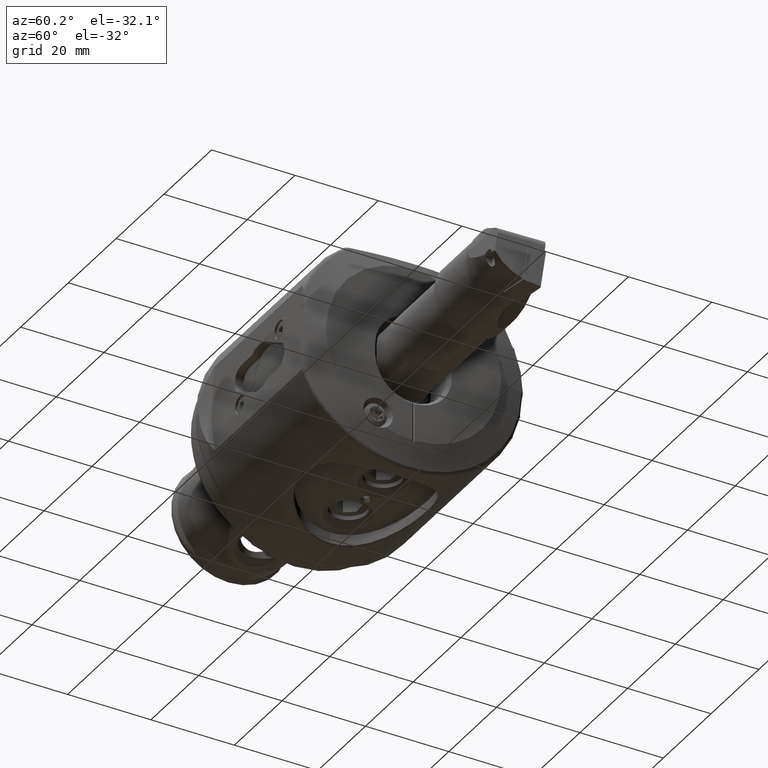
[diagram: clean part render]
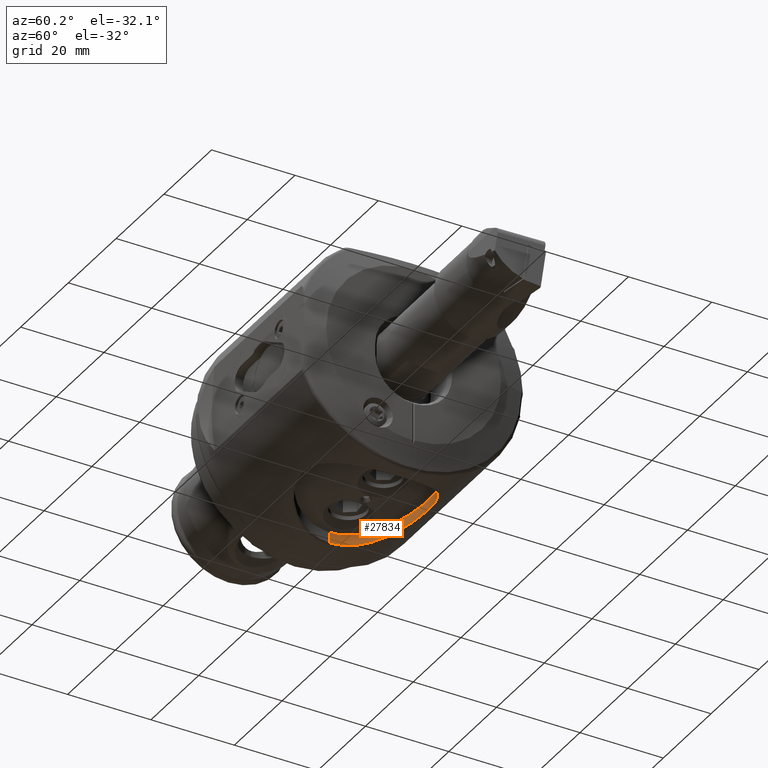
[diagram: same view with one face highlighted and labeled with its STEP entity id]
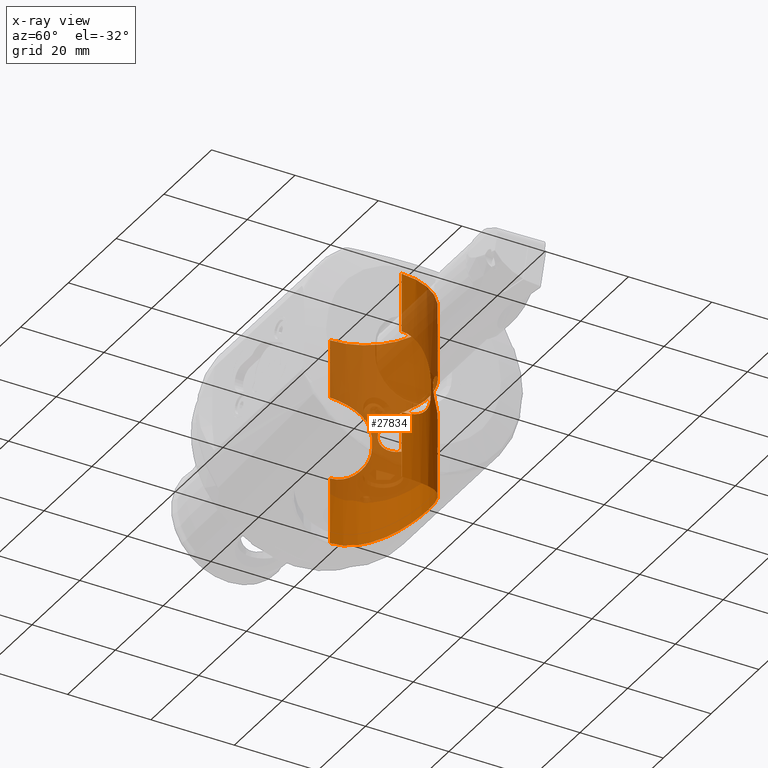
[diagram: x-ray of the same camera — body ghosted, the highlighted face saturated]
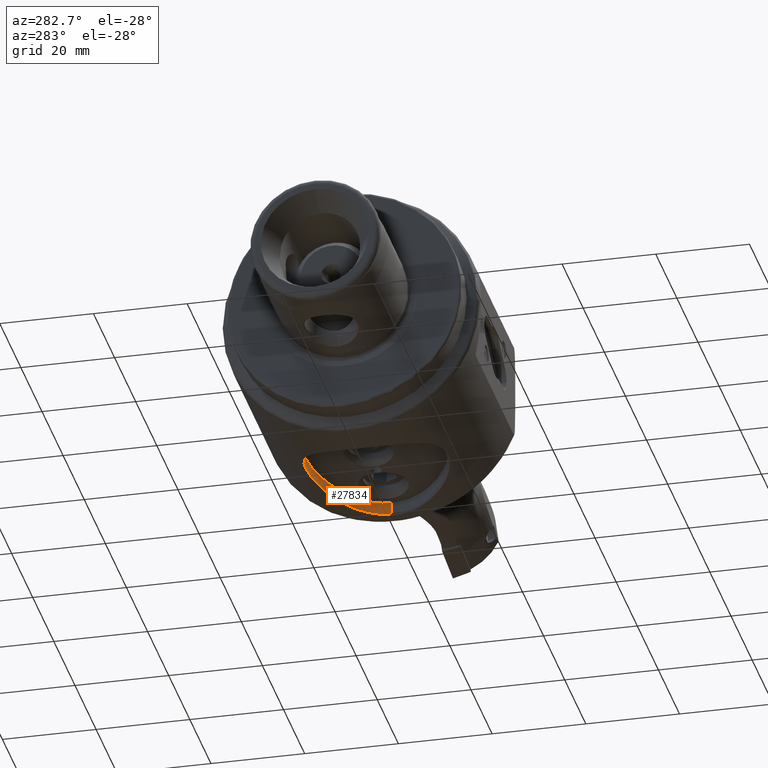
[diagram: same view with one face highlighted and labeled with its STEP entity id]
A machine part, auxiliary view. The second image highlights one B-rep face of the part: STEP entity #27834.
The next image is the same camera in x-ray: the body ghosted, the highlighted face saturated — about 62% of this face is hidden behind the body in this view.
A second angle (auxiliary view) of the same face is appended — the face is thin or edge-on in the first view.
In plain terms, the highlighted cylindrical surface (partial cylindrical patch) has radius 15 mm, axis along (0, 0, 1).
Its self-contained STEP definition (entity closure, byte-faithful):
#95 = CARTESIAN_POINT ( 'NONE',  ( 22.75157557544884700, 13.13467273460381800, -23.67365640926875900 ) ) ;
#143 = CARTESIAN_POINT ( 'NONE',  ( 22.53274095894338600, 13.01179327144117800, -23.74415716907358100 ) ) ;
#179 = CARTESIAN_POINT ( 'NONE',  ( 22.20005937471370700, 12.81318097403018500, -23.85561619081520800 ) ) ;
#243 = CARTESIAN_POINT ( 'NONE',  ( 22.03261400971080500, 12.71030177477935100, -23.91277267219462700 ) ) ;
#286 = CARTESIAN_POINT ( 'NONE',  ( 26.79120852772499700, 14.66733810437715700, -4.999999999999992900 ) ) ;
#298 = CARTESIAN_POINT ( 'NONE',  ( 21.83562904784315300, 12.58375944407518100, -23.98195243219402100 ) ) ;
#334 = CARTESIAN_POINT ( 'NONE',  ( 21.73676857496848300, 12.51882664595182400, -24.01716661179121800 ) ) ;
#400 = CARTESIAN_POINT ( 'NONE',  ( 21.69078835310330100, 12.48828978938217200, -24.03366097901077600 ) ) ;
#447 = CARTESIAN_POINT ( 'NONE',  ( 21.67132137409110000, 12.47530136149333100, -24.04066491311673600 ) ) ;
#538 = CARTESIAN_POINT ( 'NONE',  ( 21.66601107688186900, 12.47175341173732700, -24.04257716725264500 ) ) ;
#676 = CARTESIAN_POINT ( 'NONE',  ( 21.66247063056649900, 12.46938685532176000, -24.04385246785187400 ) ) ;
#725 = CARTESIAN_POINT ( 'NONE',  ( 21.65966962962145500, 12.46751338094114400, -24.04486182088266600 ) ) ;
#760 = CARTESIAN_POINT ( 'NONE',  ( 45.00000000000000700, -1.264993041911778700E-015, -11.30000000000002400 ) ) ;
#874 = CARTESIAN_POINT ( 'NONE',  ( 21.65647486111267400, 12.46537595553541100, -24.04601327739413800 ) ) ;
#917 = CARTESIAN_POINT ( 'NONE',  ( 26.15942712606574000, 14.50000000000000700, -4.999999999999999100 ) ) ;
#1018 = CARTESIAN_POINT ( 'NONE',  ( 21.65389056553872700, 12.46364582288146000, -24.04694552055352500 ) ) ;
#1149 = CARTESIAN_POINT ( 'NONE',  ( 21.48406249076424500, 12.34987120328142900, -24.10826139267583600 ) ) ;
#1205 = CARTESIAN_POINT ( 'NONE',  ( 21.19892904272943600, 12.15641744058195400, -24.21400922768919300 ) ) ;
#1245 = ORIENTED_EDGE ( 'NONE', *, *, #7022, .T. ) ;
#1271 = CARTESIAN_POINT ( 'NONE',  ( 33.84057287393425600, 14.50000000000000500, 4.999999999999993800 ) ) ;
#1291 = CARTESIAN_POINT ( 'NONE',  ( 20.62123909262756200, 11.70889309834586600, -24.44069390621015700 ) ) ;
#1314 = CARTESIAN_POINT ( 'NONE',  ( 34.31415174142357900, 14.37456454123118400, 4.999999999999994700 ) ) ;
#1350 = CARTESIAN_POINT ( 'NONE',  ( 20.40393738703580300, 11.53320618936145800, -24.52759928671730100 ) ) ;
#1384 = CARTESIAN_POINT ( 'NONE',  ( 34.78214550815981500, 14.22584008890221200, 4.995481341966534000 ) ) ;
#1424 = CARTESIAN_POINT ( 'NONE',  ( 35.70666439557698600, 13.88082934743038000, 4.964536755608261100 ) ) ;
#1429 = CARTESIAN_POINT ( 'NONE',  ( 17.64079290569173300, 8.500000000000007100, 31.65196704728146000 ) ) ;
#1445 = CARTESIAN_POINT ( 'NONE',  ( 20.04708006193269700, 11.22337740504104500, -24.67497308897824500 ) ) ;
#1467 = CARTESIAN_POINT ( 'NONE',  ( 36.16419873297788700, 13.68370012713376100, 4.937860107210929600 ) ) ;
#1499 = CARTESIAN_POINT ( 'NONE',  ( 19.92299936373476800, 11.11237251125822400, -24.72693364498193700 ) ) ;
#1566 = CARTESIAN_POINT ( 'NONE',  ( 37.04571651781001400, 13.25137253040702000, 4.846621231642140900 ) ) ;
#1587 = CARTESIAN_POINT ( 'NONE',  ( 19.73018309186482000, 10.93336873230044600, -24.80912841186253500 ) ) ;
#1657 = CARTESIAN_POINT ( 'NONE',  ( 37.47228568034080400, 13.01533167904467800, 4.782182072620042100 ) ) ;
#1663 = CARTESIAN_POINT ( 'NONE',  ( 38.08947102746146400, 12.63403880383878400, 4.640750495787804300 ) ) ;
#1669 = ORIENTED_EDGE ( 'NONE', *, *, #7602, .F. ) ;
#1711 = CARTESIAN_POINT ( 'NONE',  ( 38.29141305790228200, 12.50240507956488600, 4.586087235399565600 ) ) ;
#1731 = CARTESIAN_POINT ( 'NONE',  ( 19.63210361500684400, 10.84074201234994900, -24.85128927852158400 ) ) ;
#1774 = CARTESIAN_POINT ( 'NONE',  ( 26.15942712606574000, 14.50000000000000700, -4.999999999999999100 ) ) ;
#1810 = CARTESIAN_POINT ( 'NONE',  ( 38.68735835095895200, 12.23059557635302500, 4.457845349355955600 ) ) ;
#1883 = CARTESIAN_POINT ( 'NONE',  ( 25.20066200526853700, 14.24605466790290200, -4.999999999999994700 ) ) ;
#1902 = CARTESIAN_POINT ( 'NONE',  ( 19.51499795315606200, 10.72700534274550100, -24.90233805192331900 ) ) ;
#1920 = CARTESIAN_POINT ( 'NONE',  ( 38.88075131634208500, 12.09075935697175200, 4.384326948336799000 ) ) ;
#1939 = CARTESIAN_POINT ( 'NONE',  ( 24.27952893478732900, 13.90099785945499800, -4.983539480594757300 ) ) ;
#1946 = CARTESIAN_POINT ( 'NONE',  ( 22.95874317955715300, 13.25371966893422700, -4.847205655442584400 ) ) ;
#1955 = CARTESIAN_POINT ( 'NONE',  ( 19.46426369955594600, 10.67702350020062400, -24.92461490387395200 ) ) ;
#2031 = CARTESIAN_POINT ( 'NONE',  ( 39.43719608515409200, 11.66859687940239000, 4.134030652087153300 ) ) ;
#2036 = CARTESIAN_POINT ( 'NONE',  ( 22.52545394689134300, 13.01409632245477400, -4.781861774022488900 ) ) ;
#2086 = CARTESIAN_POINT ( 'NONE',  ( 21.69982301603708000, 12.50370360433520700, -4.592266593465113900 ) ) ;
#2126 = CARTESIAN_POINT ( 'NONE',  ( 39.78025508092153500, 11.38092263896443200, 3.927111279155718100 ) ) ;
#2177 = CARTESIAN_POINT ( 'NONE',  ( 21.30739908724399400, 12.23334856545922700, -4.468652474341881000 ) ) ;
#2192 = CARTESIAN_POINT ( 'NONE',  ( 19.43880793401199400, 10.65182447749655200, -24.93581979755044400 ) ) ;
#2224 = CARTESIAN_POINT ( 'NONE',  ( 20.56651339216970000, 11.67156622619073600, -4.136003632653461700 ) ) ;
#2231 = DIRECTION ( 'NONE',  ( -0.0000000000000000000, -0.0000000000000000000, 1.000000000000000000 ) ) ;
#2245 = CARTESIAN_POINT ( 'NONE',  ( 19.42900421947020800, 10.64209267334858400, -24.94014147116021400 ) ) ;
#2264 = CARTESIAN_POINT ( 'NONE',  ( 40.24945027573112800, 10.95415293100343000, 3.530535399771189500 ) ) ;
#2320 = CARTESIAN_POINT ( 'NONE',  ( 20.21627879125151100, 11.37777849039900200, -3.924211474300705000 ) ) ;
#2324 = CARTESIAN_POINT ( 'NONE',  ( 40.39681945488153800, 10.81399494466730900, 3.384730831310358600 ) ) ;
#2342 = CARTESIAN_POINT ( 'NONE',  ( 19.41568196929600600, 10.62884283847648300, -24.94601919231905600 ) ) ;
#2358 = CARTESIAN_POINT ( 'NONE',  ( 40.66828620205345100, 10.54627948386393400, 3.067756533469661900 ) ) ;
#2379 = CARTESIAN_POINT ( 'NONE',  ( 19.75203063378784700, 10.95549564766252000, -3.531772162636301400 ) ) ;
#2397 = CARTESIAN_POINT ( 'NONE',  ( 19.40903210934275000, 10.62221667695599500, -24.94895468746320300 ) ) ;
#2419 = CARTESIAN_POINT ( 'NONE',  ( 40.79321992689213500, 10.41796112357476800, 2.895948158624200200 ) ) ;
#2435 = CARTESIAN_POINT ( 'NONE',  ( 19.60640768003307200, 10.81710695235074700, -3.388139458516095500 ) ) ;
#2439 = CARTESIAN_POINT ( 'NONE',  ( 19.33404065693537900, 10.54864329780673600, -3.070825687467348500 ) ) ;
#2475 = CARTESIAN_POINT ( 'NONE',  ( 19.20736506027044800, 10.41854720349732900, -2.896628066587807000 ) ) ;
#2479 = CARTESIAN_POINT ( 'NONE',  ( 41.13480893173481000, 10.05614595677951900, 2.334606979105421100 ) ) ;
#2492 = CARTESIAN_POINT ( 'NONE',  ( 18.55265124312265700, 9.767286520010523900, -25.32719941990389500 ) ) ;
#2510 = CARTESIAN_POINT ( 'NONE',  ( 41.31053133227823100, 9.854229438513010900, 1.911121142285483000 ) ) ;
#2544 = CARTESIAN_POINT ( 'NONE',  ( 17.88839018885194300, 8.901987805243216200, -25.64737273084950800 ) ) ;
#2566 = CARTESIAN_POINT ( 'NONE',  ( 41.48953151366534800, 9.643606939720076100, 1.214223404766314100 ) ) ;
#2581 = CARTESIAN_POINT ( 'NONE',  ( 18.98133241162530600, 10.17919738244004600, -2.525742628675919500 ) ) ;
#2588 = CARTESIAN_POINT ( 'NONE',  ( 18.88079543213728000, 10.06880340606726200, -2.327889085177189600 ) ) ;
#2618 = CARTESIAN_POINT ( 'NONE',  ( 41.53394097068896700, 9.590119569518426700, 0.9764858150665428600 ) ) ;
#2623 = CARTESIAN_POINT ( 'NONE',  ( 18.70488083193847800, 9.871058465600327700, -1.904592113308727400 ) ) ;
#2627 = CARTESIAN_POINT ( 'NONE',  ( 41.59352337021709900, 9.518004178252267500, 0.4900694040034138100 ) ) ;
#2640 = CARTESIAN_POINT ( 'NONE',  ( 17.10580072551195100, 7.679436492695356400, -26.04492375958855300 ) ) ;
#2659 = CARTESIAN_POINT ( 'NONE',  ( 41.60857696978006700, 9.499523205493572300, 0.2385109945167295200 ) ) ;
#2678 = CARTESIAN_POINT ( 'NONE',  ( 18.63066917109218700, 9.785024119928557700, -1.681291795943409300 ) ) ;
#2694 = CARTESIAN_POINT ( 'NONE',  ( 16.88035921579060500, 7.283966841746510200, -26.16365594622166700 ) ) ;
#2733 = CARTESIAN_POINT ( 'NONE',  ( 16.58642396541695900, 6.717236394459233000, -26.32107699175151100 ) ) ;
#2744 = CARTESIAN_POINT ( 'NONE',  ( 18.51208425671006500, 9.645526030228126000, -1.221401706879983000 ) ) ;
#2771 = CARTESIAN_POINT ( 'NONE',  ( 41.60778086193898400, 9.500495979485613400, -0.2580992362699954800 ) ) ;
#2775 = CARTESIAN_POINT ( 'NONE',  ( 18.46690786107222200, 9.591143784820172200, -0.9822619822595837200 ) ) ;
#2790 = CARTESIAN_POINT ( 'NONE',  ( 16.49581635880654000, 6.532711958355768000, -26.37010446785815200 ) ) ;
#2822 = CARTESIAN_POINT ( 'NONE',  ( 18.40643412916083900, 9.517955861665145200, -0.4908606184911195000 ) ) ;
#2833 = VERTEX_POINT ( 'NONE', #37046 ) ;
#2835 = CARTESIAN_POINT ( 'NONE',  ( 16.36986838943797200, 6.263332788159841500, -26.43847637341314500 ) ) ;
#2861 = CARTESIAN_POINT ( 'NONE',  ( 41.59240383859057700, 9.519371664252043200, -0.5036592869835555500 ) ) ;
#2875 = CARTESIAN_POINT ( 'NONE',  ( 18.39170409464222200, 9.499866641362832100, -0.2444294125085618700 ) ) ;
#2880 = CARTESIAN_POINT ( 'NONE',  ( 18.39192357751103300, 9.500134830605308200, 0.2498552175346022400 ) ) ;
#2916 = CARTESIAN_POINT ( 'NONE',  ( 41.53178319910659200, 9.592718065696345800, -0.9894014925586518400 ) ) ;
#2955 = CARTESIAN_POINT ( 'NONE',  ( 41.48567713960625300, 9.648197494095732900, -1.231945338293141300 ) ) ;
#2984 = CARTESIAN_POINT ( 'NONE',  ( 18.63129727979879400, 9.785752174759608100, 1.683194300325362900 ) ) ;
#3036 = CARTESIAN_POINT ( 'NONE',  ( 16.30938566620878300, 6.130492915663910300, -26.47136999903940000 ) ) ;
#3040 = CARTESIAN_POINT ( 'NONE',  ( 18.70566180108068400, 9.871950354955384200, 1.906706644849234000 ) ) ;
#3081 = CARTESIAN_POINT ( 'NONE',  ( 41.36625197158512900, 9.788606149947279200, -1.691284973777805700 ) ) ;
#3085 = CARTESIAN_POINT ( 'NONE',  ( 18.88142409084295500, 10.06949596129738100, 2.329164594774186400 ) ) ;
#3094 = CARTESIAN_POINT ( 'NONE',  ( 16.24294846837176800, 5.978909625272207200, -26.50748432308870800 ) ) ;
#3127 = CARTESIAN_POINT ( 'NONE',  ( 18.98176662808428700, 10.17965880898577100, 2.526468746665353000 ) ) ;
#3141 = CARTESIAN_POINT ( 'NONE',  ( 16.21073263646107100, 5.903985534791800700, -26.52497609198467600 ) ) ;
#3161 = CARTESIAN_POINT ( 'NONE',  ( 41.29298177439074600, 9.873481725764953900, -1.910081582743011800 ) ) ;
#3175 = CARTESIAN_POINT ( 'NONE',  ( 16.19713766709662700, 5.872063055247029000, -26.53235140869824700 ) ) ;
#3177 = CARTESIAN_POINT ( 'NONE',  ( 19.20707115602652600, 10.41823435493193800, 2.896132171257585600 ) ) ;
#3218 = CARTESIAN_POINT ( 'NONE',  ( 41.11923754589927400, 10.06874546026464600, -2.327459172282026100 ) ) ;
#3221 = CARTESIAN_POINT ( 'NONE',  ( 19.33299125835747400, 10.54759067274875600, 3.069510118688221700 ) ) ;
#3235 = CARTESIAN_POINT ( 'NONE',  ( 16.19037523088037700, 5.856133281661865200, -26.53601887444328600 ) ) ;
#3262 = CARTESIAN_POINT ( 'NONE',  ( 19.60601099863584600, 10.81673412512554600, 3.387769820081838500 ) ) ;
#3276 = CARTESIAN_POINT ( 'NONE',  ( 16.18826845072596000, 5.851165495157524700, -26.53716111893315200 ) ) ;
#3295 = CARTESIAN_POINT ( 'NONE',  ( 41.01769852267279500, 10.18026042448406400, -2.527641326793565100 ) ) ;
#3301 = VERTEX_POINT ( 'NONE', #27599 ) ;
#3312 = CARTESIAN_POINT ( 'NONE',  ( 16.18193658292446500, 5.836196487663225500, -26.54059452440953800 ) ) ;
#3325 = CARTESIAN_POINT ( 'NONE',  ( 19.75178922642986700, 10.95526810597990800, 3.531540359484654200 ) ) ;
#3357 = CARTESIAN_POINT ( 'NONE',  ( 20.06114679934219700, 11.23667746218576500, 3.793102625206170100 ) ) ;
#3368 = ORIENTED_EDGE ( 'NONE', *, *, #9920, .T. ) ;
#3375 = CARTESIAN_POINT ( 'NONE',  ( 16.17877724869281400, 5.828710634138783300, -26.54230788387186000 ) ) ;
#3408 = CARTESIAN_POINT ( 'NONE',  ( 20.22473654642579200, 11.37956811404555200, 3.910865448574985900 ) ) ;
#3412 = CARTESIAN_POINT ( 'NONE',  ( 20.56947923529106600, 11.66686008124634500, 4.123746101847613600 ) ) ;
#3423 = CARTESIAN_POINT ( 'NONE',  ( 15.77207425882920900, 4.862863008007878700, -26.76289997192448000 ) ) ;
#3462 = CARTESIAN_POINT ( 'NONE',  ( 15.47706622566907700, 3.882923892892486100, -26.92700581196551800 ) ) ;
#3465 = CARTESIAN_POINT ( 'NONE',  ( 20.75059245037976700, 11.81112796991803800, 4.218618333483593800 ) ) ;
#3532 = CARTESIAN_POINT ( 'NONE',  ( 15.18758334756398300, 2.416710317256782300, -27.09100022428942000 ) ) ;
#3548 = CARTESIAN_POINT ( 'NONE',  ( 40.67679506054608400, 10.54113748237775100, -3.086080082457257800 ) ) ;
#3562 = CARTESIAN_POINT ( 'NONE',  ( 40.40598197072394300, 10.81180438587276500, -3.398332761160487400 ) ) ;
#3566 = CARTESIAN_POINT ( 'NONE',  ( 21.30752559084732000, 12.23347965254506400, 4.468778274385182500 ) ) ;
#3604 = CARTESIAN_POINT ( 'NONE',  ( 39.77898683343219900, 11.38204688819056700, -3.928081062834868100 ) ) ;
#3651 = CARTESIAN_POINT ( 'NONE',  ( 39.43576879621909400, 11.66972382040825500, -4.134759269452021400 ) ) ;
#3656 = CARTESIAN_POINT ( 'NONE',  ( 21.70082708864639500, 12.50440953311803400, 4.592601784403775000 ) ) ;
#3659 = CARTESIAN_POINT ( 'NONE',  ( 38.69488931390900900, 12.23172459791247100, -4.467843346556424700 ) ) ;
#3668 = CARTESIAN_POINT ( 'NONE',  ( 15.11651096996698700, 1.928525251911728900, -27.13197097044110300 ) ) ;
#3700 = CARTESIAN_POINT ( 'NONE',  ( 38.29509731030847100, 12.50703559395937400, -4.593668425506356500 ) ) ;
#3703 = CARTESIAN_POINT ( 'NONE',  ( 22.32140360342576100, 12.88791253751501400, 4.734951650091411500 ) ) ;
#3710 = CARTESIAN_POINT ( 'NONE',  ( 22.53399977460964700, 13.01226300739830000, 4.775126638887765100 ) ) ;
#3724 = CARTESIAN_POINT ( 'NONE',  ( 15.04617043777746200, 1.200976795193280400, -27.17288600273422400 ) ) ;
#3743 = CARTESIAN_POINT ( 'NONE',  ( 37.47098353992228700, 13.01610478147221900, -4.782442023450915500 ) ) ;
#3756 = CARTESIAN_POINT ( 'NONE',  ( 15.02876437480207800, 0.9592444014923305900, -27.18310083234286300 ) ) ;
#3796 = CARTESIAN_POINT ( 'NONE',  ( 37.04355407635647900, 13.25256636643444400, -4.846947433392546900 ) ) ;
#3817 = CARTESIAN_POINT ( 'NONE',  ( 15.00594471654480500, 0.4834513986123552500, -27.19652801310303800 ) ) ;
#3833 = CARTESIAN_POINT ( 'NONE',  ( 36.15978574828972800, 13.68573011784443100, -4.938213710567366000 ) ) ;
#3844 = CARTESIAN_POINT ( 'NONE',  ( 35.70227895737983200, 13.88258092550122800, -4.964733818639691000 ) ) ;
#3848 = CARTESIAN_POINT ( 'NONE',  ( 22.96337900875879300, 13.24938160688485500, 4.842638682719703000 ) ) ;
#3903 = CARTESIAN_POINT ( 'NONE',  ( 23.18071998798890500, 13.36253664295548700, 4.870143562531010800 ) ) ;
#3911 = CARTESIAN_POINT ( 'NONE',  ( 24.28024615074310700, 13.90121802464036300, 4.983512764956579100 ) ) ;
#3946 = CARTESIAN_POINT ( 'NONE',  ( 34.78035324663859000, 14.22639312328389300, -4.995490714685917800 ) ) ;
#3952 = CARTESIAN_POINT ( 'NONE',  ( 25.20046846299485900, 14.24600340492316000, 4.999999999999992900 ) ) ;
#3955 = CARTESIAN_POINT ( 'NONE',  ( 34.31338893333769100, 14.37476658399274700, -4.999999999999993800 ) ) ;
#3971 = CARTESIAN_POINT ( 'NONE',  ( 15.00002041154925800, 0.01644714855396264500, -27.19998898058904800 ) ) ;
#3984 = CARTESIAN_POINT ( 'NONE',  ( 33.84057287393425600, 14.50000000000000700, -4.999999999999993800 ) ) ;
#4069 = CARTESIAN_POINT ( 'NONE',  ( 26.15942712606574000, 14.50000000000000700, 4.999999999999993800 ) ) ;
#4134 = VECTOR ( 'NONE', #2231, 1000.000000000000000 ) ;
#4179 = CARTESIAN_POINT ( 'NONE',  ( 15.00026311924304600, 0.2504563930964245300, -27.19989522680047100 ) ) ;
#4426 = EDGE_CURVE ( 'NONE', #25663, #10632, #26469, .T. ) ;
#4656 = LINE ( 'NONE', #1429, #4134 ) ;
#5329 = ORIENTED_EDGE ( 'NONE', *, *, #27235, .F. ) ;
#5804 = ORIENTED_EDGE ( 'NONE', *, *, #10245, .F. ) ;
#5938 = CARTESIAN_POINT ( 'NONE',  ( 26.15942712606574000, 14.50000000000000700, 4.999999999999993800 ) ) ;
#6006 = CYLINDRICAL_SURFACE ( 'NONE', #16112, 15.00000000000000000 ) ;
#6024 = CARTESIAN_POINT ( 'NONE',  ( 45.00000000000000700, -1.264993041911778700E-015, -11.30000000000002400 ) ) ;
#6033 = CARTESIAN_POINT ( 'NONE',  ( 44.99999999999999300, 0.5713435008706725400, -11.29999999999999900 ) ) ;
#6086 = CARTESIAN_POINT ( 'NONE',  ( 44.96747639947288600, 1.133357869651175700, -11.24298346852056700 ) ) ;
#6182 = CARTESIAN_POINT ( 'NONE',  ( 44.87360046734197300, 1.963026132086371100, -11.07503147319386500 ) ) ;
#6192 = CARTESIAN_POINT ( 'NONE',  ( 44.83462152683595300, 2.238209853909537600, -11.00493109092194600 ) ) ;
#6239 = CARTESIAN_POINT ( 'NONE',  ( 44.74264346372416400, 2.780295469210810400, -10.83743955876504500 ) ) ;
#6252 = CARTESIAN_POINT ( 'NONE',  ( 44.69035275305587600, 3.043400950991754300, -10.74133131907389000 ) ) ;
#6308 = CARTESIAN_POINT ( 'NONE',  ( 44.51733761743025000, 3.810763956531647800, -10.41814990262101200 ) ) ;
#6348 = CARTESIAN_POINT ( 'NONE',  ( 44.38048943247014900, 4.293264370134058300, -10.15659632955402700 ) ) ;
#6355 = CARTESIAN_POINT ( 'NONE',  ( 44.15245198988348800, 4.976520018180886900, -9.696350892726712800 ) ) ;
#6364 = VERTEX_POINT ( 'NONE', #9932 ) ;
#6415 = CARTESIAN_POINT ( 'NONE',  ( 44.07220577881143000, 5.198495084040189300, -9.530579467336421500 ) ) ;
#6425 = FACE_BOUND ( 'NONE', #28388, .T. ) ;
#6464 = CARTESIAN_POINT ( 'NONE',  ( 43.90879096557828400, 5.621108475723533900, -9.181864195442397400 ) ) ;
#6508 = CARTESIAN_POINT ( 'NONE',  ( 43.82546892131327400, 5.822389867643122100, -8.998661980168163800 ) ) ;
#6513 = EDGE_CURVE ( 'NONE', #15339, #6364, #44694, .T. ) ;
#6556 = CARTESIAN_POINT ( 'NONE',  ( 43.57369319244215700, 6.397664556506564200, -8.422670600638262800 ) ) ;
#6566 = CARTESIAN_POINT ( 'NONE',  ( 43.40299602960531200, 6.743957826514329000, -8.003076145511968800 ) ) ;
#6615 = CARTESIAN_POINT ( 'NONE',  ( 43.07559099960100500, 7.358681250507652600, -7.089846010665955800 ) ) ;
#6650 = CARTESIAN_POINT ( 'NONE',  ( 42.92301772115205000, 7.619651912091711700, -6.607589152993670100 ) ) ;
#6658 = CARTESIAN_POINT ( 'NONE',  ( 42.65982316634615800, 8.049370141787383300, -5.586479990945517400 ) ) ;
#6703 = CARTESIAN_POINT ( 'NONE',  ( 42.54906376862016500, 8.218218252248794500, -5.042203787261637000 ) ) ;
#6715 = CARTESIAN_POINT ( 'NONE',  ( 42.39958386814975500, 8.442063290879254100, -3.939366691629396600 ) ) ;
#6718 = EDGE_CURVE ( 'NONE', #42707, #25663, #20648, .T. ) ;
#6764 = CARTESIAN_POINT ( 'NONE',  ( 42.35920709430826700, 8.500000000000007100, -2.800000000000000300 ) ) ;
#6865 = CARTESIAN_POINT ( 'NONE',  ( 42.35920709430826000, 8.500000000000007100, -3.376177558512020400 ) ) ;
#7022 = EDGE_CURVE ( 'NONE', #10918, #42615, #19262, .T. ) ;
#7125 = FACE_OUTER_BOUND ( 'NONE', #43208, .T. ) ;
#7262 = CARTESIAN_POINT ( 'NONE',  ( 42.35920709430826700, 8.500000000000007100, 0.0000000000000000000 ) ) ;
#7323 = CARTESIAN_POINT ( 'NONE',  ( 42.35920709430826700, 8.500000000000005300, 0.5756188737184044800 ) ) ;
#7404 = EDGE_CURVE ( 'NONE', #10918, #42707, #41843, .T. ) ;
#7422 = ORIENTED_EDGE ( 'NONE', *, *, #11095, .F. ) ;
#7429 = LINE ( 'NONE', #23467, #7744 ) ;
#7468 = CIRCLE ( 'NONE', #34792, 14.99999999999999600 ) ;
#7475 = CARTESIAN_POINT ( 'NONE',  ( 42.39953115064380300, 8.442156927655174700, 1.140166539860313100 ) ) ;
#7567 = CARTESIAN_POINT ( 'NONE',  ( 42.51247453505331500, 8.273002937046360500, 1.971654314545447300 ) ) ;
#7602 = EDGE_CURVE ( 'NONE', #32715, #42615, #16392, .T. ) ;
#7624 = CARTESIAN_POINT ( 'NONE',  ( 42.55921725093136800, 8.202182524783804500, 2.247841397168389900 ) ) ;
#7744 = VECTOR ( 'NONE', #23635, 1000.000000000000000 ) ;
#7859 = ORIENTED_EDGE ( 'NONE', *, *, #15732, .F. ) ;
#7871 = CARTESIAN_POINT ( 'NONE',  ( 42.66603560413739200, 8.036247768746607200, 2.783399165769775400 ) ) ;
#7989 = CARTESIAN_POINT ( 'NONE',  ( 42.72611253373024500, 7.941139790333850500, 3.043664970773886800 ) ) ;
#8085 = CARTESIAN_POINT ( 'NONE',  ( 42.92207745282728800, 7.621186250597129500, 3.803933573219572000 ) ) ;
#8115 = ORIENTED_EDGE ( 'NONE', *, *, #11166, .F. ) ;
#8131 = CARTESIAN_POINT ( 'NONE',  ( 43.07360109310662500, 7.362117104404866600, 4.283624653704045200 ) ) ;
#8169 = CARTESIAN_POINT ( 'NONE',  ( 43.31786165039339000, 6.903949196738289600, 4.965937735922065800 ) ) ;
#8171 = VERTEX_POINT ( 'NONE', #34942 ) ;
#8228 = CARTESIAN_POINT ( 'NONE',  ( 43.40193641368278300, 6.739804954962054700, 5.186421541525750600 ) ) ;
#8267 = EDGE_CURVE ( 'NONE', #32715, #37926, #13698, .T. ) ;
#8280 = CARTESIAN_POINT ( 'NONE',  ( 43.57007068585359400, 6.394532981247721200, 5.606593189189720100 ) ) ;
#8480 = CARTESIAN_POINT ( 'NONE',  ( 43.65453873593808300, 6.212661467463886900, 5.807429682566207100 ) ) ;
#8535 = CARTESIAN_POINT ( 'NONE',  ( 43.82216243761314400, 5.830215789212292800, 6.191283055916704500 ) ) ;
#8586 = CARTESIAN_POINT ( 'NONE',  ( 43.90532344644672200, 5.629642858819984500, 6.374298851400897800 ) ) ;
#8622 = CARTESIAN_POINT ( 'NONE',  ( 44.06834081596694100, 5.208904448534514800, 6.722490536316955800 ) ) ;
#8729 = CARTESIAN_POINT ( 'NONE',  ( 44.14854793950414100, 4.987624793482140700, 6.888347794952387900 ) ) ;
#8976 = CARTESIAN_POINT ( 'NONE',  ( 44.37742521094278900, 4.303589642585075500, 7.350650439747955300 ) ) ;
#9031 = CARTESIAN_POINT ( 'NONE',  ( 44.51509280913592200, 3.819687759191461300, 7.613904205460496400 ) ) ;
#9123 = CARTESIAN_POINT ( 'NONE',  ( 44.68935441117358200, 3.048335683913711200, 7.939492270610878100 ) ) ;
#9170 = CARTESIAN_POINT ( 'NONE',  ( 42.35920709430826700, 8.500000000000007100, 0.0000000000000000000 ) ) ;
#9263 = CARTESIAN_POINT ( 'NONE',  ( 44.74227991187449800, 2.782038680677294500, 8.036769515450762600 ) ) ;
#9311 = CARTESIAN_POINT ( 'NONE',  ( 44.83376426428267100, 2.243656384684199700, 8.203377931847905200 ) ) ;
#9407 = CARTESIAN_POINT ( 'NONE',  ( 44.87252742432295300, 1.971066642768472700, 8.273103517692524300 ) ) ;
#9553 = ORIENTED_EDGE ( 'NONE', *, *, #13126, .F. ) ;
#9625 = CARTESIAN_POINT ( 'NONE',  ( 44.93531290276227700, 1.419015219811164700, 8.385448189013823500 ) ) ;
#9714 = CARTESIAN_POINT ( 'NONE',  ( 44.95933762281874400, 1.139554073584402100, 8.428068687591162300 ) ) ;
#9907 = CARTESIAN_POINT ( 'NONE',  ( 45.00000000000000700, 1.264993145309355300E-015, 8.500000000000023100 ) ) ;
#9920 = EDGE_CURVE ( 'NONE', #37926, #31145, #7468, .T. ) ;
#9932 = CARTESIAN_POINT ( 'NONE',  ( 45.00000000000000000, -9.153983521083504300E-016, -27.20000236652574100 ) ) ;
#9945 = EDGE_CURVE ( 'NONE', #6364, #10632, #7429, .T. ) ;
#10074 = ORIENTED_EDGE ( 'NONE', *, *, #11406, .F. ) ;
#10245 = EDGE_CURVE ( 'NONE', #14444, #14584, #24726, .T. ) ;
#10503 = CARTESIAN_POINT ( 'NONE',  ( 44.99171305516583900, 0.5735026344084509500, 8.485400404088430500 ) ) ;
#10597 = CARTESIAN_POINT ( 'NONE',  ( 38.81267197477333800, 12.13931878518524100, -24.21997250105486900 ) ) ;
#10632 = VERTEX_POINT ( 'NONE', #760 ) ;
#10878 = CARTESIAN_POINT ( 'NONE',  ( 44.99999999999999300, 0.2850598804854693700, 8.500000000000000000 ) ) ;
#10918 = VERTEX_POINT ( 'NONE', #13368 ) ;
#11095 = EDGE_CURVE ( 'NONE', #31119, #14444, #4656, .T. ) ;
#11166 = EDGE_CURVE ( 'NONE', #32195, #2833, #30011, .T. ) ;
#11406 = EDGE_CURVE ( 'NONE', #8171, #34913, #29804, .T. ) ;
#11683 = ORIENTED_EDGE ( 'NONE', *, *, #19185, .F. ) ;
#11957 = CARTESIAN_POINT ( 'NONE',  ( 40.02852530004420800, 11.18222540587719900, -24.70073843365804600 ) ) ;
#11979 = CARTESIAN_POINT ( 'NONE',  ( 14.99999999999999300, 5.719771956069424700E-016, 8.500000000000023100 ) ) ;
#12047 = CARTESIAN_POINT ( 'NONE',  ( 45.00000000000000000, -9.153983521083504300E-016, -27.20000236652574100 ) ) ;
#12065 = CARTESIAN_POINT ( 'NONE',  ( 15.00000000000001100, 0.5713435008706749800, 8.500000000000001800 ) ) ;
#12133 = CARTESIAN_POINT ( 'NONE',  ( 15.03252360052712100, 1.133357869651177900, 8.442983468520569800 ) ) ;
#12246 = CARTESIAN_POINT ( 'NONE',  ( 15.12639953265802400, 1.963026132086371800, 8.275031473193864800 ) ) ;
#12306 = CARTESIAN_POINT ( 'NONE',  ( 15.16537847316404400, 2.238209853909539000, 8.204931090921949300 ) ) ;
#12395 = CARTESIAN_POINT ( 'NONE',  ( 15.25735653627585000, 2.780295469210811300, 8.037439558765044000 ) ) ;
#12448 = CARTESIAN_POINT ( 'NONE',  ( 15.30964724694412400, 3.043400950991756100, 7.941331319073891700 ) ) ;
#12531 = CARTESIAN_POINT ( 'NONE',  ( 15.48266238256975000, 3.810763956531649600, 7.618149902621009800 ) ) ;
#12593 = CARTESIAN_POINT ( 'NONE',  ( 15.61951056752983800, 4.293264370134059100, 7.356596329554029100 ) ) ;
#12678 = CARTESIAN_POINT ( 'NONE',  ( 15.84754801011652200, 4.976520018180887700, 6.896350892726716500 ) ) ;
#12740 = CARTESIAN_POINT ( 'NONE',  ( 15.92779422118858300, 5.198495084040194700, 6.730579467336420800 ) ) ;
#12792 = CARTESIAN_POINT ( 'NONE',  ( 16.09120903442170600, 5.621108475723541000, 6.381864195442397600 ) ) ;
#12830 = CARTESIAN_POINT ( 'NONE',  ( 16.17453107868670900, 5.822389867643123800, 6.198661980168161300 ) ) ;
#12929 = CARTESIAN_POINT ( 'NONE',  ( 16.42630680755783200, 6.397664556506566000, 5.622670600638263000 ) ) ;
#12971 = CARTESIAN_POINT ( 'NONE',  ( 16.59700397039468800, 6.743957826514332500, 5.203076145511964500 ) ) ;
#13030 = CARTESIAN_POINT ( 'NONE',  ( 16.92440900039899200, 7.358681250507653500, 4.289846010665951500 ) ) ;
#13076 = B_SPLINE_CURVE_WITH_KNOTS ( 'NONE', 3,
 ( #3984, #3955, #3946, #3844, #3833, #3796, #3743, #3700, #3659, #3651, #3604, #3562, #3548, #3295, #3218, #3161, #3081, #2955, #2916, #2861, #2771, #2659, #2627, #2618, #2566, #2510, #2479, #2419, #2358, #2324, #2264, #2126, #2031, #1920, #1810, #1711, #1663, #1657, #1566, #1467, #1424, #1384, #1314, #1271 ),
 .UNSPECIFIED., .F., .F.,
 ( 4, 2, 2, 2, 2, 2, 2, 2, 2, 2, 2, 2, 2, 2, 2, 2, 2, 2, 2, 2, 2, 4 ),
 ( 0.007731890726419861700, 0.009199198718067970100, 0.01066650670971607700, 0.01213381470136418500, 0.01360112269301229400, 0.01506843068466040200, 0.01653573867630851000, 0.01726939267213255900, 0.01800304666795660500, 0.01873670066378065400, 0.01947035465960470300, 0.02020400865542875200, 0.02093766265125280100, 0.02240497064290090200, 0.02313862463872495100, 0.02387227863454900700, 0.02533958662619709100, 0.02607324062202114700, 0.02680689461784519600, 0.02827420260949330100, 0.02974151060114140600, 0.03120881859278951100 ),
 .UNSPECIFIED. ) ;
#13080 = CARTESIAN_POINT ( 'NONE',  ( 17.07698227884794300, 7.619651912091713400, 3.807589152993667200 ) ) ;
#13114 = CARTESIAN_POINT ( 'NONE',  ( 17.34017683365384600, 8.049370141787381500, 2.786479990945511800 ) ) ;
#13126 = EDGE_CURVE ( 'NONE', #34913, #32195, #24109, .T. ) ;
#13171 = CARTESIAN_POINT ( 'NONE',  ( 17.45093623137982100, 8.218218252248789200, 2.242203787261634500 ) ) ;
#13211 = VECTOR ( 'NONE', #31113, 1000.000000000000000 ) ;
#13219 = CARTESIAN_POINT ( 'NONE',  ( 17.64079290569173300, 8.500000000000007100, 0.0000000000000000000 ) ) ;
#13368 = CARTESIAN_POINT ( 'NONE',  ( 45.00000000000000700, 1.264993145309355300E-015, 8.500000000000023100 ) ) ;
#13379 = CARTESIAN_POINT ( 'NONE',  ( 17.64079290569173600, 8.500000000000008900, 0.5761775585120187900 ) ) ;
#13472 = CARTESIAN_POINT ( 'NONE',  ( 17.60041613185024200, 8.442063290879255900, 1.139366691629395000 ) ) ;
#13534 = LINE ( 'NONE', #41626, #14015 ) ;
#13698 = LINE ( 'NONE', #31568, #13211 ) ;
#13914 = CARTESIAN_POINT ( 'NONE',  ( 45.00000000000000000, 0.9561803377925055500, -27.19997749763480500 ) ) ;
#14015 = VECTOR ( 'NONE', #38038, 1000.000000000000000 ) ;
#14444 = VERTEX_POINT ( 'NONE', #28735 ) ;
#14486 = CARTESIAN_POINT ( 'NONE',  ( 44.90828583197906500, 1.932865048504152100, -27.14528854116487700 ) ) ;
#14584 = VERTEX_POINT ( 'NONE', #44140 ) ;
#14622 = CARTESIAN_POINT ( 'NONE',  ( 44.61827311239490300, 3.399166022329725300, -26.98125897509148900 ) ) ;
#14940 = CARTESIAN_POINT ( 'NONE',  ( 30.00000000000000000, 0.0000000000000000000, 31.65196704728146000 ) ) ;
#14991 = CARTESIAN_POINT ( 'NONE',  ( 44.49624884777063700, 3.888077450745357000, -26.91291643117226300 ) ) ;
#15001 = CARTESIAN_POINT ( 'NONE',  ( 26.15942712606574000, 14.50000000000000700, -4.999999999999999100 ) ) ;
#15339 = VERTEX_POINT ( 'NONE', #32865 ) ;
#15732 = EDGE_CURVE ( 'NONE', #3301, #31119, #18901, .T. ) ;
#16112 = AXIS2_PLACEMENT_3D ( 'NONE', #14940, #36098, #32634 ) ;
#16303 = CARTESIAN_POINT ( 'NONE',  ( 44.27390015819042900, 4.617398456261118300, -26.78990358245131600 ) ) ;
#16392 = CIRCLE ( 'NONE', #18399, 15.00000000000000000 ) ;
#17413 = CARTESIAN_POINT ( 'NONE',  ( 17.64079290569173300, 8.500000000000007100, -2.800000000000000300 ) ) ;
#17647 = CARTESIAN_POINT ( 'NONE',  ( 44.15290451464205300, 4.981041689441300800, -26.72327239988033300 ) ) ;
#18399 = AXIS2_PLACEMENT_3D ( 'NONE', #22479, #22267, #21363 ) ;
#18575 = CARTESIAN_POINT ( 'NONE',  ( 43.99435200453141400, 5.402521671757122100, -26.63656769334573600 ) ) ;
#18731 = CARTESIAN_POINT ( 'NONE',  ( 43.91070875984152600, 5.612441231873486200, -26.59097325836132300 ) ) ;
#18767 = VECTOR ( 'NONE', #24297, 1000.000000000000000 ) ;
#18876 = CARTESIAN_POINT ( 'NONE',  ( 43.86779317727106800, 5.717179829349068300, -26.56761552043986200 ) ) ;
#18901 = B_SPLINE_CURVE_WITH_KNOTS ( 'NONE', 3,
 ( #25997, #25955, #25749, #25692, #25652, #25639, #25593, #25543, #25508, #25495, #25455, #25404, #25367, #25351, #25305, #25250, #25207, #25192, #25148, #25089, #25052, #25039, #24997, #24949, #24940, #24909, #24894, #24852 ),
 .UNSPECIFIED., .F., .F.,
 ( 4, 2, 2, 2, 2, 2, 2, 2, 2, 2, 2, 2, 2, 4 ),
 ( 0.01360003496518911100, 0.01444821656169519700, 0.01529639815820128100, 0.01614457975470736900, 0.01699276135121345300, 0.01868912454422562400, 0.01953730614073171200, 0.02038548773723779600, 0.02123366933374388000, 0.02208185093024996700, 0.02377821412326213600, 0.02462639571976822000, 0.02547457731627430400, 0.02717094050928647200 ),
 .UNSPECIFIED. ) ;
#19185 = EDGE_CURVE ( 'NONE', #2833, #8171, #13076, .T. ) ;
#19262 = LINE ( 'NONE', #26218, #18767 ) ;
#19835 = CARTESIAN_POINT ( 'NONE',  ( 43.84606164121535000, 5.769491810014661900, -26.55579652137180000 ) ) ;
#20296 = CARTESIAN_POINT ( 'NONE',  ( 43.83668944007384700, 5.791898730483497500, -26.55070120817677900 ) ) ;
#20366 = VECTOR ( 'NONE', #37986, 1000.000000000000000 ) ;
#20612 = CARTESIAN_POINT ( 'NONE',  ( 43.83042826188616200, 5.806833875533903300, -26.54729765985117100 ) ) ;
#20648 = LINE ( 'NONE', #37383, #20366 ) ;
#21020 = CARTESIAN_POINT ( 'NONE',  ( 43.82688971374317100, 5.815251890111547100, -26.54537447720695900 ) ) ;
#21363 = DIRECTION ( 'NONE',  ( 1.000000000000000000, 0.0000000000000000000, 0.0000000000000000000 ) ) ;
#21383 = CARTESIAN_POINT ( 'NONE',  ( 43.53629296302492000, 6.505454448915173800, -26.38743044762970100 ) ) ;
#21994 = CARTESIAN_POINT ( 'NONE',  ( 43.15292510838913400, 7.276372881741667500, -26.17594774939544400 ) ) ;
#22267 = DIRECTION ( 'NONE',  ( -0.0000000000000000000, -0.0000000000000000000, -1.000000000000000000 ) ) ;
#22287 = CARTESIAN_POINT ( 'NONE',  ( 42.36600356520530400, 8.504011766842138400, -25.77657914057513400 ) ) ;
#22479 = CARTESIAN_POINT ( 'NONE',  ( 30.00000000000000000, 0.0000000000000000000, 22.65999999999999700 ) ) ;
#23282 = DIRECTION ( 'NONE',  ( -1.000000000000000000, 0.0000000000000000000, 0.0000000000000000000 ) ) ;
#23322 = DIRECTION ( 'NONE',  ( 0.0000000000000000000, 0.0000000000000000000, 1.000000000000000000 ) ) ;
#23425 = CARTESIAN_POINT ( 'NONE',  ( 30.00000000000000000, 0.0000000000000000000, 22.64999999999999500 ) ) ;
#23467 = CARTESIAN_POINT ( 'NONE',  ( 45.00000000000000000, 0.0000000000000000000, 31.65196704728146000 ) ) ;
#23635 = DIRECTION ( 'NONE',  ( -0.0000000000000000000, -0.0000000000000000000, 1.000000000000000000 ) ) ;
#23671 = CARTESIAN_POINT ( 'NONE',  ( 42.06831837235242900, 8.924735227754936800, -25.62976551072354100 ) ) ;
#23690 = EDGE_CURVE ( 'NONE', #15339, #3301, #44460, .T. ) ;
#23737 = CARTESIAN_POINT ( 'NONE',  ( 41.38075840157921400, 9.775485829869367600, -25.30533404046948600 ) ) ;
#24036 = CARTESIAN_POINT ( 'NONE',  ( 41.09509696332387600, 10.09550739813083800, -25.17468767771356400 ) ) ;
#24109 = B_SPLINE_CURVE_WITH_KNOTS ( 'NONE', 3,
 ( #4069, #3952, #3911, #3903, #3848, #3710, #3703, #3656, #3566, #3465, #3412, #3408, #3357, #3325, #3262, #3221, #3177, #3127, #3085, #3040, #2984, #38281, #38274, #38217, #2880, #2875, #2822, #2775, #2744, #2678, #2623, #2588, #2581, #2475, #2439, #2435, #2379, #2320, #2224, #2177, #2086, #2036, #1946, #1939, #1883, #1774 ),
 .UNSPECIFIED., .F., .F.,
 ( 4, 2, 2, 2, 2, 2, 2, 2, 2, 2, 2, 2, 2, 2, 2, 2, 2, 2, 2, 2, 2, 2, 4 ),
 ( 0.03893468233875210100, 0.04186808110881627000, 0.04260143080133230900, 0.04333478049384834100, 0.04480147987888041800, 0.04553482957139645700, 0.04626817926391249600, 0.04700152895642853400, 0.04773487864894457300, 0.04846822834146061200, 0.04920157803397664400, 0.04993492772649268200, 0.05066827741900872100, 0.05140162711152476000, 0.05213497680404079200, 0.05286832649655683100, 0.05360167618907286900, 0.05433502588158890800, 0.05506837557410494700, 0.05653507495913701700, 0.05800177434416908800, 0.05946847372920116600, 0.06240187249926530700 ),
 .UNSPECIFIED. ) ;
#24297 = DIRECTION ( 'NONE',  ( -0.0000000000000000000, -0.0000000000000000000, 1.000000000000000000 ) ) ;
#24441 = ORIENTED_EDGE ( 'NONE', *, *, #23690, .F. ) ;
#24726 = B_SPLINE_CURVE_WITH_KNOTS ( 'NONE', 3,
 ( #13219, #13379, #13472, #13171, #13114, #13080, #13030, #12971, #12929, #12830, #12792, #12740, #12678, #12593, #12531, #12448, #12395, #12306, #12246, #12133, #12065, #11979 ),
 .UNSPECIFIED., .F., .F.,
 ( 4, 2, 2, 2, 2, 2, 2, 2, 2, 2, 4 ),
 ( 5.034364661603313500E-019, 0.001700004370648638500, 0.003400008741297276500, 0.005100013111945914800, 0.006800017482594553100, 0.007650019667918873100, 0.008500021853243194800, 0.01020002622389183500, 0.01105002840921615700, 0.01190003059454047700, 0.01360003496518912000 ),
 .UNSPECIFIED. ) ;
#24852 = CARTESIAN_POINT ( 'NONE',  ( 17.64079290569173300, 8.500000000000007100, -2.800000000000000300 ) ) ;
#24894 = CARTESIAN_POINT ( 'NONE',  ( 17.64079290569173600, 8.500000000000008900, -3.375618873718407200 ) ) ;
#24909 = CARTESIAN_POINT ( 'NONE',  ( 17.60046884935619000, 8.442156927655180000, -3.940166539860313000 ) ) ;
#24940 = CARTESIAN_POINT ( 'NONE',  ( 17.48752546494668200, 8.273002937046362200, -4.771654314545446400 ) ) ;
#24949 = CARTESIAN_POINT ( 'NONE',  ( 17.44078274906864600, 8.202182524783800900, -5.047841397168393300 ) ) ;
#24997 = CARTESIAN_POINT ( 'NONE',  ( 17.33396439586261900, 8.036247768746607200, -5.583399165769776600 ) ) ;
#25039 = CARTESIAN_POINT ( 'NONE',  ( 17.27388746626975500, 7.941139790333847000, -5.843664970773890100 ) ) ;
#25052 = CARTESIAN_POINT ( 'NONE',  ( 17.07792254717269700, 7.621186250597130400, -6.603933573219578100 ) ) ;
#25089 = CARTESIAN_POINT ( 'NONE',  ( 16.92639890689337900, 7.362117104404870100, -7.083624653704049500 ) ) ;
#25148 = CARTESIAN_POINT ( 'NONE',  ( 16.68213834960661400, 6.903949196738291300, -7.765937735922068300 ) ) ;
#25192 = CARTESIAN_POINT ( 'NONE',  ( 16.59806358631721300, 6.739804954962053800, -7.986421541525754900 ) ) ;
#25207 = CARTESIAN_POINT ( 'NONE',  ( 16.42992931414641300, 6.394532981247719400, -8.406593189189722500 ) ) ;
#25250 = CARTESIAN_POINT ( 'NONE',  ( 16.34546126406191400, 6.212661467463885100, -8.607429682566209600 ) ) ;
#25305 = CARTESIAN_POINT ( 'NONE',  ( 16.17783756238685600, 5.830215789212290100, -8.991283055916710500 ) ) ;
#25351 = CARTESIAN_POINT ( 'NONE',  ( 16.09467655355328500, 5.629642858819985400, -9.174298851400898500 ) ) ;
#25367 = CARTESIAN_POINT ( 'NONE',  ( 15.93165918403307500, 5.208904448534511300, -9.522490536316954700 ) ) ;
#25404 = CARTESIAN_POINT ( 'NONE',  ( 15.85145206049585400, 4.987624793482138100, -9.688347794952388600 ) ) ;
#25455 = CARTESIAN_POINT ( 'NONE',  ( 15.62257478905719300, 4.303589642585074600, -10.15065043974796300 ) ) ;
#25495 = CARTESIAN_POINT ( 'NONE',  ( 15.48490719086407600, 3.819687759191464400, -10.41390420546049900 ) ) ;
#25508 = CARTESIAN_POINT ( 'NONE',  ( 15.31064558882641600, 3.048335683913709500, -10.73949227061088300 ) ) ;
#25543 = CARTESIAN_POINT ( 'NONE',  ( 15.25772008812548500, 2.782038680677292800, -10.83676951545076500 ) ) ;
#25593 = CARTESIAN_POINT ( 'NONE',  ( 15.16623573571734000, 2.243656384684195300, -11.00337793184790400 ) ) ;
#25602 = CARTESIAN_POINT ( 'NONE',  ( 41.56032642257492400, 9.562042397365390300, -25.38900892557890300 ) ) ;
#25639 = CARTESIAN_POINT ( 'NONE',  ( 15.12747257567704500, 1.971066642768470400, -11.07310351769252300 ) ) ;
#25652 = CARTESIAN_POINT ( 'NONE',  ( 15.06468709723772800, 1.419015219811162700, -11.18544818901382400 ) ) ;
#25663 = VERTEX_POINT ( 'NONE', #28597 ) ;
#25692 = CARTESIAN_POINT ( 'NONE',  ( 15.04066237718126200, 1.139554073584402500, -11.22806868759116500 ) ) ;
#25749 = CARTESIAN_POINT ( 'NONE',  ( 15.00828694483416600, 0.5735026344084515100, -11.28540040408842900 ) ) ;
#25756 = CARTESIAN_POINT ( 'NONE',  ( 40.94819019321200000, 10.25547933750861100, -25.10808098756264800 ) ) ;
#25793 = CARTESIAN_POINT ( 'NONE',  ( 44.99924998124905800, 0.1499999999999994100, 22.64999999999999500 ) ) ;
#25866 = CARTESIAN_POINT ( 'NONE',  ( 40.76947334245806300, 10.44165169013437300, -25.02812704203390100 ) ) ;
#25955 = CARTESIAN_POINT ( 'NONE',  ( 15.00000000000000900, 0.2850598804854697600, -11.30000000000000100 ) ) ;
#25980 = ORIENTED_EDGE ( 'NONE', *, *, #6513, .T. ) ;
#25997 = CARTESIAN_POINT ( 'NONE',  ( 14.99999999999999300, 3.101963176032923300E-015, -11.30000000000002400 ) ) ;
#26008 = CARTESIAN_POINT ( 'NONE',  ( 40.67826084705503600, 10.53457089181266300, -24.98758853418138400 ) ) ;
#26103 = CARTESIAN_POINT ( 'NONE',  ( 40.63877009052393400, 10.57435204270944100, -24.97009455901139000 ) ) ;
#26218 = CARTESIAN_POINT ( 'NONE',  ( 45.00000000000000000, 0.0000000000000000000, 31.65196704728146000 ) ) ;
#26469 = B_SPLINE_CURVE_WITH_KNOTS ( 'NONE', 3,
 ( #6764, #6865, #6715, #6703, #6658, #6650, #6615, #6566, #6556, #6508, #6464, #6415, #6355, #6348, #6308, #6252, #6239, #6192, #6182, #6086, #6033, #6024 ),
 .UNSPECIFIED., .F., .F.,
 ( 4, 2, 2, 2, 2, 2, 2, 2, 2, 2, 4 ),
 ( 4.336808689942017700E-019, 0.001700004370648642400, 0.003400008741297284300, 0.005100013111945928700, 0.006800017482594572200, 0.007650019667918891300, 0.008500021853243212200, 0.01020002622389184700, 0.01105002840921616800, 0.01190003059454048900, 0.01360003496518912700 ),
 .UNSPECIFIED. ) ;
#26543 = CARTESIAN_POINT ( 'NONE',  ( 40.61235383913059100, 10.60086299106209200, -24.95840516913196800 ) ) ;
#26838 = CARTESIAN_POINT ( 'NONE',  ( 40.60091377595932000, 10.61231483800066800, -24.95334436273183300 ) ) ;
#27235 = EDGE_CURVE ( 'NONE', #14584, #31145, #13534, .T. ) ;
#27320 = CARTESIAN_POINT ( 'NONE',  ( 39.54118656146172800, 11.58418679395456700, -24.50418488289777100 ) ) ;
#27599 = CARTESIAN_POINT ( 'NONE',  ( 14.99999999999999300, 3.101963176032923300E-015, -11.30000000000002400 ) ) ;
#27834 = ADVANCED_FACE ( 'NONE', ( #7125, #6425 ), #6006, .F. ) ;
#28388 = EDGE_LOOP ( 'NONE', ( #8115, #9553, #10074, #11683 ) ) ;
#28597 = CARTESIAN_POINT ( 'NONE',  ( 42.35920709430826700, 8.500000000000007100, -2.800000000000000300 ) ) ;
#28735 = CARTESIAN_POINT ( 'NONE',  ( 17.64079290569173300, 8.500000000000007100, 0.0000000000000000000 ) ) ;
#29135 = CARTESIAN_POINT ( 'NONE',  ( 38.97459915101747900, 12.02137580512391900, -24.28195103654245900 ) ) ;
#29305 = CARTESIAN_POINT ( 'NONE',  ( 38.61448141243909000, 12.27995407037696700, -24.14515381776976000 ) ) ;
#29697 = CARTESIAN_POINT ( 'NONE',  ( 15.00000000000000400, 1.836970198721029200E-015, 31.65196704728146000 ) ) ;
#29804 = B_SPLINE_CURVE_WITH_KNOTS ( 'NONE', 3,
 ( #41244, #41274, #41030, #41019, #40974, #40890, #40725, #40578, #40571, #40522 ),
 .UNSPECIFIED., .F., .F.,
 ( 4, 2, 2, 2, 4 ),
 ( 0.03120881859278951100, 0.03314028452928016000, 0.03507175046577081000, 0.03700321640226145200, 0.03893468233875210100 ),
 .UNSPECIFIED. ) ;
#29985 = CARTESIAN_POINT ( 'NONE',  ( 38.38415226304879000, 12.43808758017132000, -24.06001155246972100 ) ) ;
#30011 = B_SPLINE_CURVE_WITH_KNOTS ( 'NONE', 3,
 ( #917, #286, #45455, #45414, #45407, #45355, #45346, #45295, #45248, #45187 ),
 .UNSPECIFIED., .F., .F.,
 ( 4, 2, 2, 2, 4 ),
 ( 0.0000000000000000000, 0.001932972681604965400, 0.003865945363209930900, 0.005798918044814896700, 0.007731890726419861700 ),
 .UNSPECIFIED. ) ;
#30073 = DIRECTION ( 'NONE',  ( -0.0000000000000000000, -0.0000000000000000000, 1.000000000000000000 ) ) ;
#30507 = CARTESIAN_POINT ( 'NONE',  ( 38.55584670832558200, 12.32076763786036400, -24.12323910999911900 ) ) ;
#30816 = CARTESIAN_POINT ( 'NONE',  ( 38.47939922156621200, 12.37338861678280500, -24.09490432832969700 ) ) ;
#30981 = CARTESIAN_POINT ( 'NONE',  ( 38.44404991014337700, 12.39754732102149500, -24.08187125749163100 ) ) ;
#31113 = DIRECTION ( 'NONE',  ( -0.0000000000000000000, -0.0000000000000000000, -1.000000000000000000 ) ) ;
#31119 = VERTEX_POINT ( 'NONE', #17413 ) ;
#31145 = VERTEX_POINT ( 'NONE', #35380 ) ;
#31374 = CARTESIAN_POINT ( 'NONE',  ( 38.40790092469816100, 12.42205478305946700, -24.06865106817468800 ) ) ;
#31531 = CARTESIAN_POINT ( 'NONE',  ( 38.39350515462947300, 12.43177795173346900, -24.06341064275186900 ) ) ;
#31568 = CARTESIAN_POINT ( 'NONE',  ( 44.99924998124905800, 0.1499999999999995200, 22.65999999999999700 ) ) ;
#31588 = ORIENTED_EDGE ( 'NONE', *, *, #9945, .T. ) ;
#31749 = CARTESIAN_POINT ( 'NONE',  ( 38.38268547654325100, 12.43908672030991800, -24.05947554491582700 ) ) ;
#31986 = CARTESIAN_POINT ( 'NONE',  ( 31.18120509056250700, 14.95532026198822000, -22.52157540290857100 ) ) ;
#32195 = VERTEX_POINT ( 'NONE', #15001 ) ;
#32424 = CARTESIAN_POINT ( 'NONE',  ( 37.46716925912429000, 13.01832669560445200, -23.74045227251473700 ) ) ;
#32531 = CARTESIAN_POINT ( 'NONE',  ( 37.91290861724753800, 12.75488819518148100, -23.88938820107573900 ) ) ;
#32634 = DIRECTION ( 'NONE',  ( 1.000000000000000000, 0.0000000000000000000, 0.0000000000000000000 ) ) ;
#32687 = CARTESIAN_POINT ( 'NONE',  ( 45.00000000000000000, 0.0000000000000000000, 22.65999999999999700 ) ) ;
#32715 = VERTEX_POINT ( 'NONE', #39243 ) ;
#32775 = CARTESIAN_POINT ( 'NONE',  ( 36.82443471895976500, 13.35986348886587300, -23.54104425968996800 ) ) ;
#32792 = ORIENTED_EDGE ( 'NONE', *, *, #4426, .F. ) ;
#32865 = CARTESIAN_POINT ( 'NONE',  ( 15.00002041154925800, 0.01644714855396264500, -27.19998898058904800 ) ) ;
#32872 = CARTESIAN_POINT ( 'NONE',  ( 36.61446686349110300, 13.46477697176443800, -23.47857423541782000 ) ) ;
#32973 = CARTESIAN_POINT ( 'NONE',  ( 36.30703068165828300, 13.61007757793892600, -23.39086816901380000 ) ) ;
#33865 = CARTESIAN_POINT ( 'NONE',  ( 36.15518858811128700, 13.67971027471591400, -23.34851487831283000 ) ) ;
#34095 = CARTESIAN_POINT ( 'NONE',  ( 35.98153379396373500, 13.75595450240831300, -23.30172725520520400 ) ) ;
#34792 = AXIS2_PLACEMENT_3D ( 'NONE', #23425, #23322, #23282 ) ;
#34913 = VERTEX_POINT ( 'NONE', #5938 ) ;
#34942 = CARTESIAN_POINT ( 'NONE',  ( 33.84057287393425600, 14.50000000000000500, 4.999999999999993800 ) ) ;
#35380 = CARTESIAN_POINT ( 'NONE',  ( 15.00000000000000400, 1.836970198721029200E-015, 22.64999999999999500 ) ) ;
#35951 = CARTESIAN_POINT ( 'NONE',  ( 35.89560432202749500, 13.79286358400755200, -23.27898958099561700 ) ) ;
#35999 = CARTESIAN_POINT ( 'NONE',  ( 35.85897238231466100, 13.80842560929265000, -23.26938546433667900 ) ) ;
#36098 = DIRECTION ( 'NONE',  ( -0.0000000000000000000, -0.0000000000000000000, 1.000000000000000000 ) ) ;
#36149 = CARTESIAN_POINT ( 'NONE',  ( 35.83459469686817300, 13.81874378904873900, -23.26301396453283500 ) ) ;
#36247 = CARTESIAN_POINT ( 'NONE',  ( 35.82299588948157500, 13.82363902667816400, -23.25998967249097000 ) ) ;
#36501 = CARTESIAN_POINT ( 'NONE',  ( 34.82543196845154700, 14.24254472345286300, -23.00101623571892900 ) ) ;
#36714 = CARTESIAN_POINT ( 'NONE',  ( 33.83424886256293000, 14.53548953864336800, -22.80959617631799200 ) ) ;
#36857 = CARTESIAN_POINT ( 'NONE',  ( 32.37516763114372500, 14.81904378969796800, -22.61781984319384300 ) ) ;
#36920 = CARTESIAN_POINT ( 'NONE',  ( 31.89329386522918200, 14.88767398750761800, -22.56978669148200800 ) ) ;
#37033 = CARTESIAN_POINT ( 'NONE',  ( 30.82782928420233800, 14.98032337539180100, -22.50342936837042600 ) ) ;
#37046 = CARTESIAN_POINT ( 'NONE',  ( 33.84057287393425600, 14.50000000000000700, -4.999999999999993800 ) ) ;
#37206 = ORIENTED_EDGE ( 'NONE', *, *, #6718, .F. ) ;
#37383 = CARTESIAN_POINT ( 'NONE',  ( 42.35920709430826700, 8.500000000000007100, 31.65196704728146000 ) ) ;
#37777 = CARTESIAN_POINT ( 'NONE',  ( 30.47909926968674900, 14.99279350487618400, -22.49422274845516200 ) ) ;
#37926 = VERTEX_POINT ( 'NONE', #25793 ) ;
#37929 = CARTESIAN_POINT ( 'NONE',  ( 30.24770930444937600, 14.99840102446128200, -22.49007153842785200 ) ) ;
#37986 = DIRECTION ( 'NONE',  ( 0.0000000000000000000, 0.0000000000000000000, -1.000000000000000000 ) ) ;
#38038 = DIRECTION ( 'NONE',  ( -0.0000000000000000000, -0.0000000000000000000, 1.000000000000000000 ) ) ;
#38217 = CARTESIAN_POINT ( 'NONE',  ( 18.40727496327958300, 9.518981204274251000, 0.5004452020388993100 ) ) ;
#38274 = CARTESIAN_POINT ( 'NONE',  ( 18.46807170465811500, 9.592544330646793700, 0.9888743585259084400 ) ) ;
#38281 = CARTESIAN_POINT ( 'NONE',  ( 18.51293799726683200, 9.646541023158851800, 1.225239393160208600 ) ) ;
#39006 = CARTESIAN_POINT ( 'NONE',  ( 30.13395375816174100, 14.99985173518814100, -22.48899055752463000 ) ) ;
#39060 = CARTESIAN_POINT ( 'NONE',  ( 29.08841604638576300, 15.00109124898795800, -22.48817427119507400 ) ) ;
#39234 = CARTESIAN_POINT ( 'NONE',  ( 28.12548242985764800, 14.91564477531211500, -22.55152959366913400 ) ) ;
#39243 = CARTESIAN_POINT ( 'NONE',  ( 44.99924998124905800, 0.1499999999999995200, 22.65999999999999700 ) ) ;
#40522 = CARTESIAN_POINT ( 'NONE',  ( 26.15942712606574000, 14.50000000000000700, 4.999999999999993800 ) ) ;
#40571 = CARTESIAN_POINT ( 'NONE',  ( 26.79084349233888700, 14.66724141851496000, 4.999999999999993800 ) ) ;
#40578 = CARTESIAN_POINT ( 'NONE',  ( 27.42665168548964900, 14.79167608101785400, 4.992181451790895800 ) ) ;
#40725 = CARTESIAN_POINT ( 'NONE',  ( 28.70554387403377200, 14.95794725794611000, 4.979682208011133100 ) ) ;
#40890 = CARTESIAN_POINT ( 'NONE',  ( 29.34884063572306800, 14.99982881027084900, 4.974954390730131200 ) ) ;
#40974 = CARTESIAN_POINT ( 'NONE',  ( 30.64324833963927800, 15.00017014665728100, 4.974920085168668600 ) ) ;
#41019 = CARTESIAN_POINT ( 'NONE',  ( 31.29850247837410400, 14.95774531543861300, 4.979713646169808600 ) ) ;
#41030 = CARTESIAN_POINT ( 'NONE',  ( 32.58413758910188600, 14.78994545387034900, 4.992295104001339500 ) ) ;
#41066 = CARTESIAN_POINT ( 'NONE',  ( 26.66001337716117100, 14.63188498298406700, -22.74268394286408700 ) ) ;
#41244 = CARTESIAN_POINT ( 'NONE',  ( 33.84057287393425600, 14.50000000000000500, 4.999999999999993800 ) ) ;
#41274 = CARTESIAN_POINT ( 'NONE',  ( 33.21718538064458000, 14.66511483425367500, 4.999999999999992900 ) ) ;
#41626 = CARTESIAN_POINT ( 'NONE',  ( 15.00000000000000400, 1.836970198721029200E-015, 31.65196704728146000 ) ) ;
#41747 = ORIENTED_EDGE ( 'NONE', *, *, #7404, .F. ) ;
#41819 = CARTESIAN_POINT ( 'NONE',  ( 26.16812282539598700, 14.51140640302253700, -22.82242228684302500 ) ) ;
#41843 = B_SPLINE_CURVE_WITH_KNOTS ( 'NONE', 3,
 ( #9907, #10878, #10503, #9714, #9625, #9407, #9311, #9263, #9123, #9031, #8976, #8729, #8622, #8586, #8535, #8480, #8280, #8228, #8169, #8131, #8085, #7989, #7871, #7624, #7567, #7475, #7323, #7262 ),
 .UNSPECIFIED., .F., .F.,
 ( 4, 2, 2, 2, 2, 2, 2, 2, 2, 2, 2, 2, 2, 4 ),
 ( 0.01360003496518910600, 0.01444821656169518800, 0.01529639815820127300, 0.01614457975470735500, 0.01699276135121343900, 0.01868912454422560700, 0.01953730614073169400, 0.02038548773723777900, 0.02123366933374386600, 0.02208185093024995400, 0.02377821412326211800, 0.02462639571976820600, 0.02547457731627429000, 0.02717094050928646100 ),
 .UNSPECIFIED. ) ;
#42615 = VERTEX_POINT ( 'NONE', #32687 ) ;
#42707 = VERTEX_POINT ( 'NONE', #9170 ) ;
#42742 = CARTESIAN_POINT ( 'NONE',  ( 25.42984910907016500, 14.28914869587642200, -22.96606014418241100 ) ) ;
#42795 = CARTESIAN_POINT ( 'NONE',  ( 25.06061328264390700, 14.16764161410484700, -23.04388665819484300 ) ) ;
#42990 = CARTESIAN_POINT ( 'NONE',  ( 24.63079479960356000, 14.00721138762728700, -23.14519753222578700 ) ) ;
#43208 = EDGE_LOOP ( 'NONE', ( #24441, #25980, #31588, #32792, #37206, #41747, #1245, #1669, #44221, #3368, #5329, #5804, #7422, #7859 ) ) ;
#43283 = CARTESIAN_POINT ( 'NONE',  ( 24.41627399064591600, 13.92227145239036900, -23.19848128782873800 ) ) ;
#43324 = CARTESIAN_POINT ( 'NONE',  ( 24.32443591248459900, 13.88485027398850300, -23.22188039421301700 ) ) ;
#43589 = CARTESIAN_POINT ( 'NONE',  ( 24.26323443715998400, 13.85967588797032900, -23.23760495649717900 ) ) ;
#44140 = CARTESIAN_POINT ( 'NONE',  ( 14.99999999999999300, 5.719771956069424700E-016, 8.500000000000023100 ) ) ;
#44154 = CARTESIAN_POINT ( 'NONE',  ( 24.23080640175819400, 13.84619513537185200, -23.24601661894307700 ) ) ;
#44221 = ORIENTED_EDGE ( 'NONE', *, *, #8267, .T. ) ;
#44420 = VECTOR ( 'NONE', #30073, 1000.000000000000000 ) ;
#44460 = LINE ( 'NONE', #29697, #44420 ) ;
#44658 = CARTESIAN_POINT ( 'NONE',  ( 23.81166022855756000, 13.67067529697448300, -23.35539990245119300 ) ) ;
#44694 = B_SPLINE_CURVE_WITH_KNOTS ( 'NONE', 3,
 ( #3971, #4179, #3817, #3756, #3724, #3668, #3532, #3462, #3423, #3375, #3312, #3276, #3235, #3175, #3141, #3094, #3036, #2835, #2790, #2733, #2694, #2640, #2544, #2492, #2397, #2342, #2245, #2192, #1955, #1902, #1731, #1587, #1499, #1445, #1350, #1291, #1205, #1149, #1018, #874, #725, #676, #538, #447, #400, #334, #298, #243, #179, #143, #95, #44768, #44658, #44154, #43589, #43324, #43283, #42990, #42795, #42742, #41819, #41066, #39234, #39060, #39006, #37929, #37777, #37033, #31986, #36920, #36857, #36714, #36501, #36247, #36149, #35999, #35951, #34095, #33865, #32973, #32872, #32775, #32424, #32531, #31749, #29985, #31531, #31374, #30981, #30816, #30507, #29305, #10597, #29135, #27320, #11957, #26838, #26543, #26103, #26008, #25866, #25756, #24036, #23737, #25602, #23671, #22287, #21994, #21383, #21020, #20612, #20296, #19835, #18876, #18731, #18575, #17647, #16303, #14991, #14622, #14486, #13914, #12047 ),
 .UNSPECIFIED., .F., .F.,
 ( 4, 2, 2, 2, 2, 2, 2, 1, 1, 1, 2, 2, 2, 2, 2, 2, 1, 1, 2, 2, 2, 2, 2, 2, 1, 1, 1, 1, 1, 2, 2, 2, 2, 1, 1, 1, 2, 2, 2, 2, 1, 2, 2, 2, 2, 1, 1, 1, 2, 2, 2, 2, 1, 1, 2, 2, 2, 2, 2, 1, 1, 1, 2, 2, 2, 2, 2, 1, 1, 1, 1, 1, 2, 2, 4 ),
 ( 0.4998209443016233800, 0.5074600862885855200, 0.5152781801570216500, 0.5309143678938937900, 0.5621867433676380800, 0.5624310588010267300, 0.5626753742344153800, 0.5631640051011925800, 0.5641412668347469700, 0.5660957903018558600, 0.5700048372360735400, 0.5778229311045090000, 0.5934591188413799200, 0.6247314943151216500, 0.6249758097485103000, 0.6252201251818988400, 0.6257087560486760400, 0.6266860177822304300, 0.6286405412493392100, 0.6325495881835567800, 0.6403676820519916800, 0.6560038697888618300, 0.6562481852222503700, 0.6563092640805975300, 0.6563703429389447000, 0.6564925006556389100, 0.6569811315224158800, 0.6579583932559699400, 0.6599129167230779500, 0.6638219636572941800, 0.6716400575257266400, 0.6872762452625917900, 0.6882535069961459600, 0.6892307687297001300, 0.6911852921968084700, 0.6950943391310252500, 0.7029124329994586000, 0.7185486207363253100, 0.7498209962100586000, 0.7537300431442753900, 0.7576390900784921700, 0.7654571839469257500, 0.7810933716837926700, 0.8123657471575269600, 0.8128543780243040500, 0.8133430088910811300, 0.8143202706246353000, 0.8162747940917436400, 0.8201838410259605400, 0.8280019348943943300, 0.8436381226312621400, 0.8441267534980393400, 0.8446153843648165300, 0.8455926460983711500, 0.8475471695654799300, 0.8514562164996977200, 0.8592743103681332900, 0.8749104981050046500, 0.8753991289717819600, 0.8758877598385592700, 0.8768650215721138800, 0.8788195450392228800, 0.8827285919734412200, 0.8905466858418780200, 0.9061828735787516000, 0.9374552490524987700, 0.9376995644858874300, 0.9379438799192760800, 0.9384325107860533900, 0.9394097725196080000, 0.9413642959867175600, 0.9452733429209363400, 0.9530914367893739100, 0.9687276245262492800, 1.000000000000000000 ),
 .UNSPECIFIED. ) ;
#44768 = CARTESIAN_POINT ( 'NONE',  ( 23.39675183594063100, 13.47717520915067300, -23.47356989392314500 ) ) ;
#45187 = CARTESIAN_POINT ( 'NONE',  ( 33.84057287393425600, 14.50000000000000700, -4.999999999999993800 ) ) ;
#45248 = CARTESIAN_POINT ( 'NONE',  ( 33.21770396607506400, 14.66497747803732600, -4.999999999999992900 ) ) ;
#45295 = CARTESIAN_POINT ( 'NONE',  ( 32.58469858231505600, 14.78986788035505000, -4.992300701625896200 ) ) ;
#45346 = CARTESIAN_POINT ( 'NONE',  ( 31.29813940715541800, 14.95779705569538500, -4.979709985462264400 ) ) ;
#45355 = CARTESIAN_POINT ( 'NONE',  ( 30.64276563196189000, 15.00018059334295400, -4.974919035240811900 ) ) ;
#45407 = CARTESIAN_POINT ( 'NONE',  ( 29.34883293246439400, 14.99981823025502500, -4.974955454058158600 ) ) ;
#45414 = CARTESIAN_POINT ( 'NONE',  ( 28.70567244238848700, 14.95795659464450900, -4.979681138207404000 ) ) ;
#45455 = CARTESIAN_POINT ( 'NONE',  ( 27.42686067611055700, 14.79171062904881500, -4.992179222513645000 ) ) ;